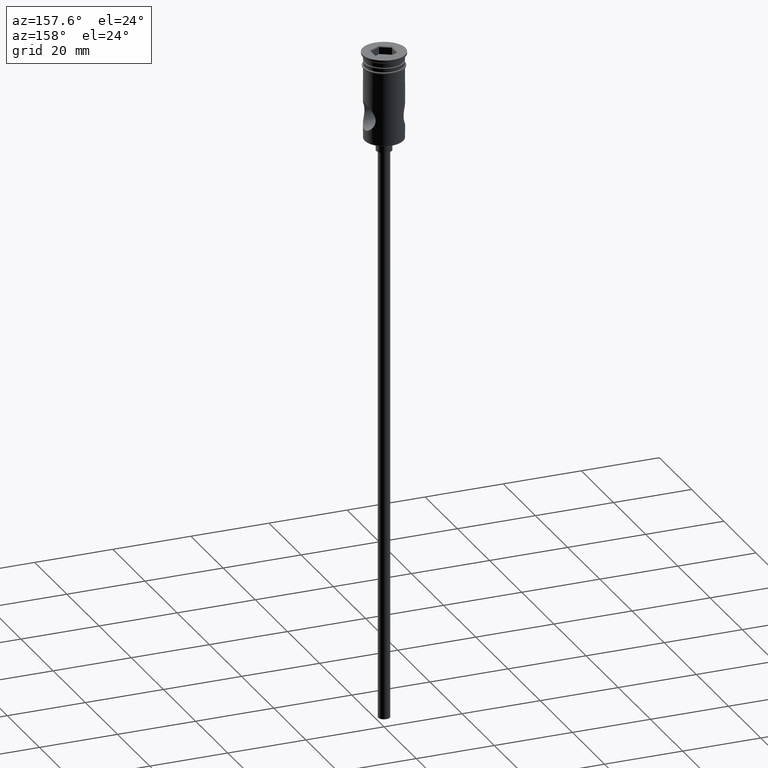
[diagram: clean part render]
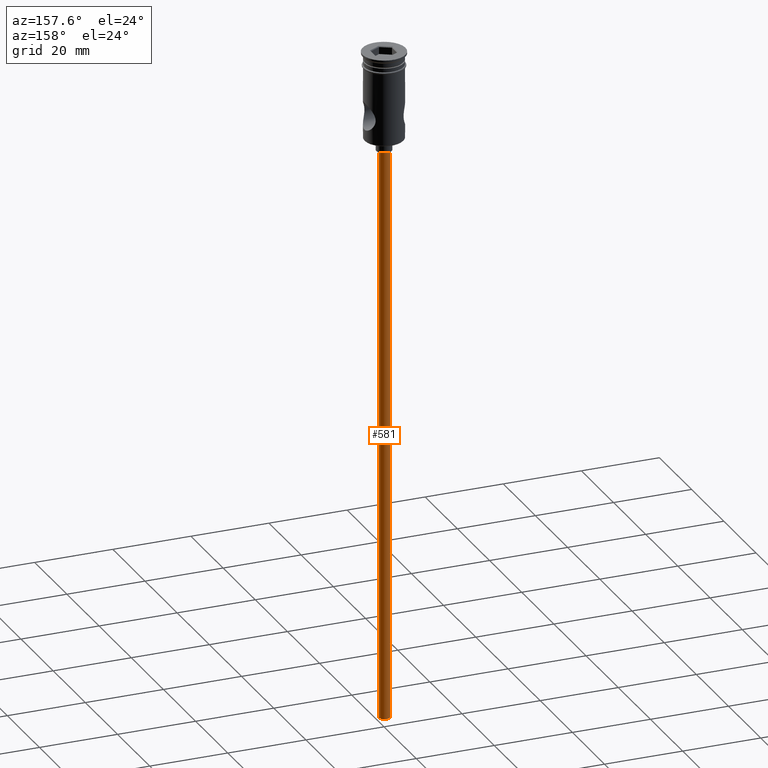
[diagram: same view with one face highlighted and labeled with its STEP entity id]
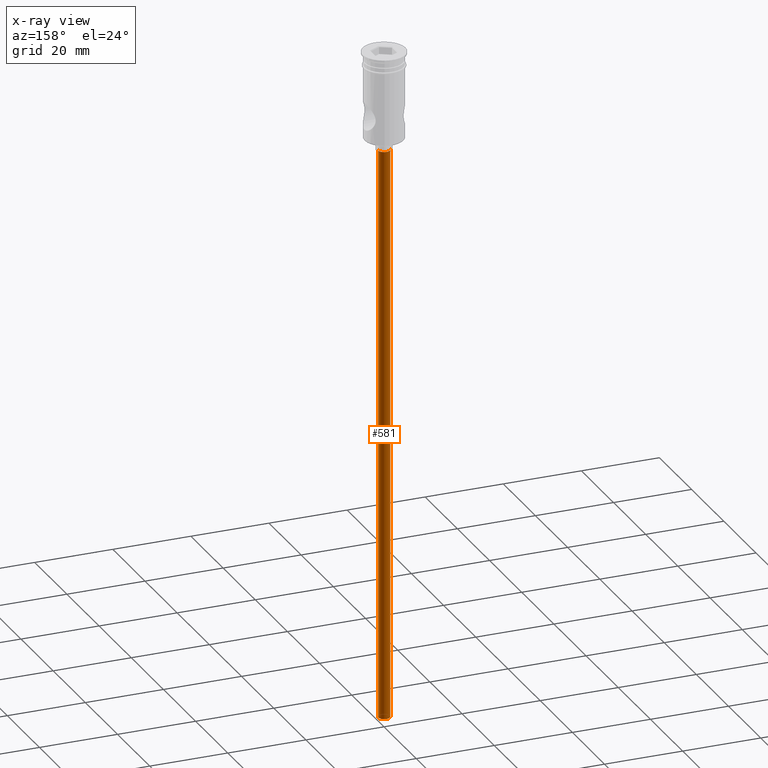
[diagram: x-ray of the same camera — body ghosted, the highlighted face saturated]
A machine part, auxiliary view. The second image highlights one B-rep face of the part: STEP entity #581.
The next image is the same camera in x-ray: the body ghosted, the highlighted face saturated — about 0% of this face is hidden behind the body in this view.
In plain terms, the highlighted cylindrical surface (edge-blend (fillet) strip) has radius 1.5 mm, axis along (-0, -0, 1).
Its self-contained STEP definition (entity closure, byte-faithful):
#51 = CYLINDRICAL_SURFACE ( 'NONE', #404, 1.500000000000000222 ) ;
#65 = DIRECTION ( 'NONE',  ( -1.000000000000000000, 0.000000000000000000, 0.000000000000000000 ) ) ;
#72 = CARTESIAN_POINT ( 'NONE',  ( 0.000000000000000000, 0.000000000000000000, -172.5000000000000000 ) ) ;
#83 = CARTESIAN_POINT ( 'NONE',  ( 0.000000000000000000, 0.000000000000000000, -172.5000000000000000 ) ) ;
#95 = ORIENTED_EDGE ( 'NONE', *, *, #1114, .F. ) ;
#177 = CIRCLE ( 'NONE', #585, 1.500000000000000222 ) ;
#219 = VECTOR ( 'NONE', #1039, 1000.000000000000000 ) ;
#315 = AXIS2_PLACEMENT_3D ( 'NONE', #72, #1310, #832 ) ;
#321 = CARTESIAN_POINT ( 'NONE',  ( -1.500000000000000222, 1.836970198721030181E-16, -172.5000000000000000 ) ) ;
#381 = DIRECTION ( 'NONE',  ( 1.000000000000000000, 0.000000000000000000, 0.000000000000000000 ) ) ;
#404 = AXIS2_PLACEMENT_3D ( 'NONE', #83, #489, #381 ) ;
#468 = CARTESIAN_POINT ( 'NONE',  ( -1.500000000000000222, 1.836970198721030181E-16, -25.50000000000000000 ) ) ;
#489 = DIRECTION ( 'NONE',  ( -0.000000000000000000, -0.000000000000000000, 1.000000000000000000 ) ) ;
#506 = CARTESIAN_POINT ( 'NONE',  ( 1.500000000000000222, 0.000000000000000000, -25.50000000000000000 ) ) ;
#547 = VERTEX_POINT ( 'NONE', #321 ) ;
#581 = ADVANCED_FACE ( 'NONE', ( #900 ), #51, .T. ) ;
#585 = AXIS2_PLACEMENT_3D ( 'NONE', #1161, #599, #65 ) ;
#599 = DIRECTION ( 'NONE',  ( 0.000000000000000000, 0.000000000000000000, -1.000000000000000000 ) ) ;
#653 = ORIENTED_EDGE ( 'NONE', *, *, #670, .T. ) ;
#670 = EDGE_CURVE ( 'NONE', #547, #1118, #1409, .T. ) ;
#694 = CARTESIAN_POINT ( 'NONE',  ( 1.500000000000000222, 0.000000000000000000, -172.5000000000000000 ) ) ;
#788 = ORIENTED_EDGE ( 'NONE', *, *, #882, .F. ) ;
#832 = DIRECTION ( 'NONE',  ( -1.000000000000000000, 0.000000000000000000, 0.000000000000000000 ) ) ;
#870 = EDGE_CURVE ( 'NONE', #1118, #901, #177, .T. ) ;
#882 = EDGE_CURVE ( 'NONE', #547, #1251, #908, .T. ) ;
#886 = ORIENTED_EDGE ( 'NONE', *, *, #870, .T. ) ;
#898 = LINE ( 'NONE', #694, #219 ) ;
#900 = FACE_OUTER_BOUND ( 'NONE', #912, .T. ) ;
#901 = VERTEX_POINT ( 'NONE', #506 ) ;
#908 = CIRCLE ( 'NONE', #315, 1.500000000000000222 ) ;
#912 = EDGE_LOOP ( 'NONE', ( #788, #653, #886, #95 ) ) ;
#1039 = DIRECTION ( 'NONE',  ( -0.000000000000000000, -0.000000000000000000, 1.000000000000000000 ) ) ;
#1114 = EDGE_CURVE ( 'NONE', #1251, #901, #898, .T. ) ;
#1118 = VERTEX_POINT ( 'NONE', #468 ) ;
#1161 = CARTESIAN_POINT ( 'NONE',  ( 0.000000000000000000, 0.000000000000000000, -25.50000000000000000 ) ) ;
#1199 = VECTOR ( 'NONE', #1215, 1000.000000000000000 ) ;
#1215 = DIRECTION ( 'NONE',  ( -0.000000000000000000, -0.000000000000000000, 1.000000000000000000 ) ) ;
#1251 = VERTEX_POINT ( 'NONE', #1291 ) ;
#1291 = CARTESIAN_POINT ( 'NONE',  ( 1.500000000000000222, 0.000000000000000000, -172.5000000000000000 ) ) ;
#1301 = CARTESIAN_POINT ( 'NONE',  ( -1.500000000000000222, 1.836970198721030181E-16, -172.5000000000000000 ) ) ;
#1310 = DIRECTION ( 'NONE',  ( 0.000000000000000000, 0.000000000000000000, -1.000000000000000000 ) ) ;
#1409 = LINE ( 'NONE', #1301, #1199 ) ;